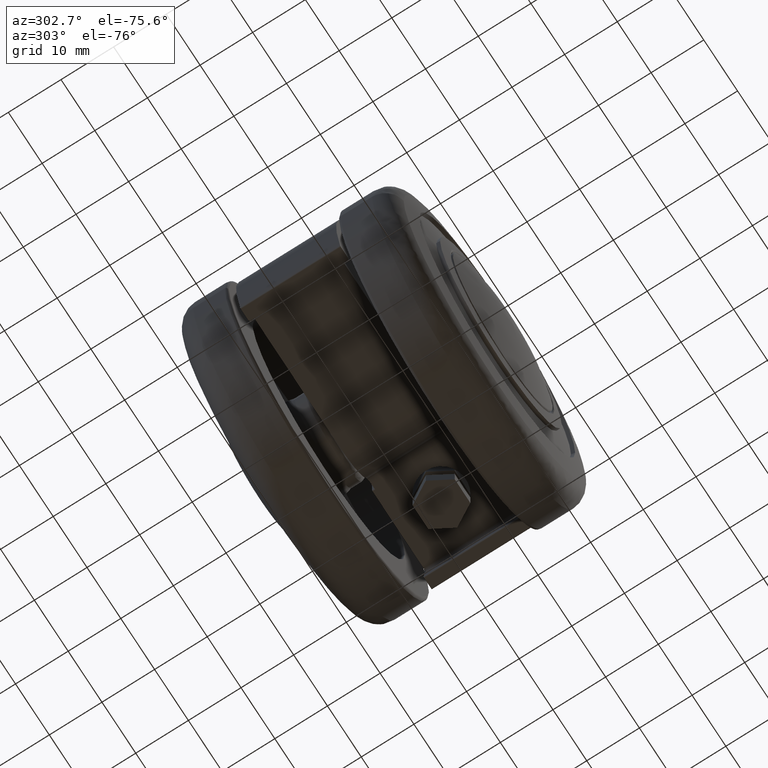
[diagram: clean part render]
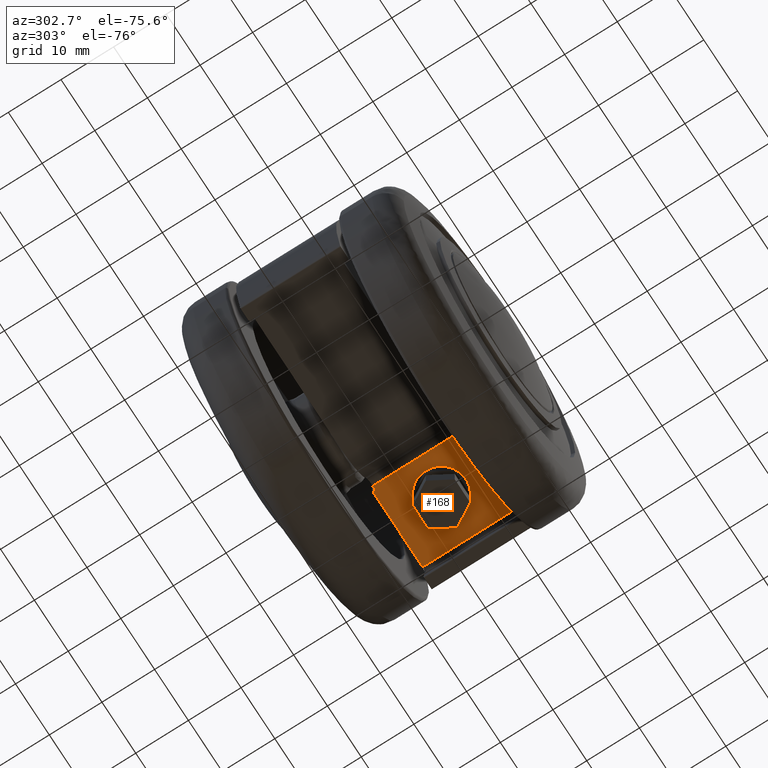
[diagram: same view with one face highlighted and labeled with its STEP entity id]
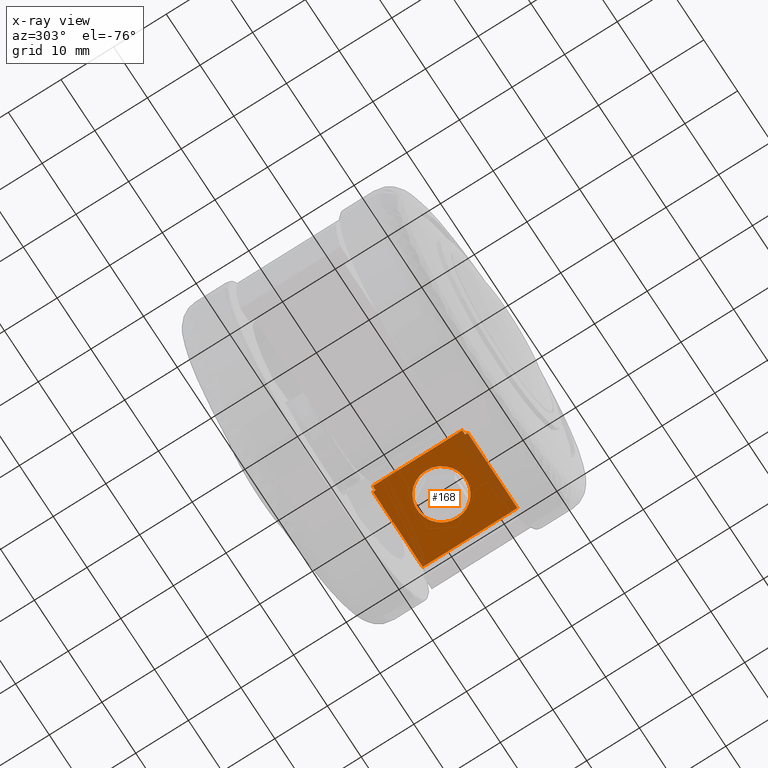
[diagram: x-ray of the same camera — body ghosted, the highlighted face saturated]
A machine part, auxiliary view. The second image highlights one B-rep face of the part: STEP entity #168.
The next image is the same camera in x-ray: the body ghosted, the highlighted face saturated — about 14% of this face is hidden behind the body in this view.
In plain terms, the highlighted planar face has unit normal (0, 0, 1).
Its self-contained STEP definition (entity closure, byte-faithful):
#168=ADVANCED_FACE('',(#410,#411),#409,.F.);
#409=PLANE('',#2024);
#410=FACE_OUTER_BOUND('',#2025,.T.);
#411=FACE_BOUND('',#2026,.T.);
#2021=CARTESIAN_POINT('',(2.70133149300E+01,1.08000000000E+01,-1.50000000000E+00));
#2022=DIRECTION('',(0.00000000000E+00,0.00000000000E+00,1.00000000000E+00));
#2023=DIRECTION('',(-1.00000000000E+00,0.00000000000E+00,0.00000000000E+00));
#2024=AXIS2_PLACEMENT_3D('',#2021,#2022,#2023);
#2025=EDGE_LOOP('',(#4573,#4574,#4575,#4576,#4577,#4578,#4579,#4580));
#2026=EDGE_LOOP('',(#4581,#4582));
#4573=ORIENTED_EDGE('',*,*,#5294,.T.);
#4574=ORIENTED_EDGE('',*,*,#5276,.F.);
#4575=ORIENTED_EDGE('',*,*,#5295,.T.);
#4576=ORIENTED_EDGE('',*,*,#5296,.F.);
#4577=ORIENTED_EDGE('',*,*,#5297,.T.);
#4578=ORIENTED_EDGE('',*,*,#5298,.F.);
#4579=ORIENTED_EDGE('',*,*,#5299,.T.);
#4580=ORIENTED_EDGE('',*,*,#5286,.F.);
#4581=ORIENTED_EDGE('',*,*,#5300,.F.);
#4582=ORIENTED_EDGE('',*,*,#5301,.F.);
#5276=EDGE_CURVE('',#5957,#5964,#5965,.T.);
#5286=EDGE_CURVE('',#6026,#6033,#6034,.T.);
#5294=EDGE_CURVE('',#6026,#5964,#6088,.T.);
#5295=EDGE_CURVE('',#5957,#6094,#6095,.T.);
#5296=EDGE_CURVE('',#6101,#6094,#6102,.T.);
#5297=EDGE_CURVE('',#6101,#6108,#6109,.T.);
#5298=EDGE_CURVE('',#6115,#6108,#6116,.T.);
#5299=EDGE_CURVE('',#6115,#6033,#6122,.T.);
#5300=EDGE_CURVE('',#6128,#6129,#6130,.T.);
#5301=EDGE_CURVE('',#6129,#6128,#6136,.T.);
#5957=VERTEX_POINT('',#8413);
#5964=VERTEX_POINT('',#8418);
#5965=LINE('',#8419,#8420);
#6026=VERTEX_POINT('',#8459);
#6033=VERTEX_POINT('',#8464);
#6034=LINE('',#8465,#8466);
#6088=LINE('',#8501,#8502);
#6094=VERTEX_POINT('',#8504);
#6095=LINE('',#8505,#8506);
#6101=VERTEX_POINT('',#8508);
#6102=LINE('',#8509,#8510);
#6108=VERTEX_POINT('',#8512);
#6109=LINE('',#8513,#8514);
#6115=VERTEX_POINT('',#8516);
#6116=LINE('',#8517,#8518);
#6122=LINE('',#8520,#8521);
#6128=VERTEX_POINT('',#8523);
#6129=VERTEX_POINT('',#8524);
#6130=CIRCLE('',#8528,4.65000000000E+00);
#6136=CIRCLE('',#8532,4.65000000000E+00);
#8413=CARTESIAN_POINT('',(1.07331262920E+01,8.50000000000E+00,-1.50000000000E+00));
#8418=CARTESIAN_POINT('',(9.89949493661E+00,8.50000000000E+00,-1.50000000000E+00));
#8419=CARTESIAN_POINT('',(1.07331262920E+01,8.50000000000E+00,-1.50000000000E+00));
#8420=VECTOR('',#8421,8.33631355387E-01);
#8421=DIRECTION('',(-1.00000000000E+00,0.00000000000E+00,0.00000000000E+00));
#8459=CARTESIAN_POINT('',(9.89949493661E+00,-8.50000000000E+00,-1.50000000000E+00));
#8464=CARTESIAN_POINT('',(1.07331262920E+01,-8.50000000000E+00,-1.50000000000E+00));
#8465=CARTESIAN_POINT('',(9.89949493661E+00,-8.50000000000E+00,-1.50000000000E+00));
#8466=VECTOR('',#8467,8.33631355387E-01);
#8467=DIRECTION('',(1.00000000000E+00,0.00000000000E+00,0.00000000000E+00));
#8501=CARTESIAN_POINT('',(9.89949493661E+00,-8.50000000000E+00,-1.50000000000E+00));
#8502=VECTOR('',#8503,1.70000000000E+01);
#8503=DIRECTION('',(0.00000000000E+00,1.00000000000E+00,0.00000000000E+00));
#8504=CARTESIAN_POINT('',(1.07331262920E+01,9.00000000000E+00,-1.50000000000E+00));
#8505=CARTESIAN_POINT('',(1.07331262920E+01,8.50000000000E+00,-1.50000000000E+00));
#8506=VECTOR('',#8507,5.00000000000E-01);
#8507=DIRECTION('',(0.00000000000E+00,1.00000000000E+00,0.00000000000E+00));
#8508=CARTESIAN_POINT('',(2.54575131125E+01,9.00000000000E+00,-1.50000000000E+00));
#8509=CARTESIAN_POINT('',(2.54575131125E+01,9.00000000000E+00,-1.50000000000E+00));
#8510=VECTOR('',#8511,1.47243868205E+01);
#8511=DIRECTION('',(-1.00000000000E+00,0.00000000000E+00,0.00000000000E+00));
#8512=CARTESIAN_POINT('',(2.54575131125E+01,-9.00000000000E+00,-1.50000000000E+00));
#8513=CARTESIAN_POINT('',(2.54575131125E+01,9.00000000000E+00,-1.50000000000E+00));
#8514=VECTOR('',#8515,1.80000000000E+01);
#8515=DIRECTION('',(-1.97372982156E-16,-1.00000000000E+00,0.00000000000E+00));
#8516=CARTESIAN_POINT('',(1.07331262920E+01,-9.00000000000E+00,-1.50000000000E+00));
#8517=CARTESIAN_POINT('',(1.07331262920E+01,-9.00000000000E+00,-1.50000000000E+00));
#8518=VECTOR('',#8519,1.47243868205E+01);
#8519=DIRECTION('',(1.00000000000E+00,0.00000000000E+00,0.00000000000E+00));
#8520=CARTESIAN_POINT('',(1.07331262920E+01,-9.00000000000E+00,-1.50000000000E+00));
#8521=VECTOR('',#8522,5.00000000000E-01);
#8522=DIRECTION('',(-3.55271367880E-15,1.00000000000E+00,0.00000000000E+00));
#8523=CARTESIAN_POINT('',(1.23500000000E+01,-2.96059473233E-14,-1.50000000000E+00));
#8524=CARTESIAN_POINT('',(2.16500000000E+01,-2.85386886640E-14,-1.50000000000E+00));
#8525=CARTESIAN_POINT('',(1.70000000000E+01,-2.96775913801E-14,-1.50000000000E+00));
#8526=DIRECTION('',(-0.00000000000E+00,0.00000000000E+00,-1.00000000000E+00));
#8527=DIRECTION('',(1.00000000000E+00,1.22464679915E-16,-0.00000000000E+00));
#8528=AXIS2_PLACEMENT_3D('',#8525,#8526,#8527);
#8529=CARTESIAN_POINT('',(1.70000000000E+01,-2.96775913801E-14,-1.50000000000E+00));
#8530=DIRECTION('',(-0.00000000000E+00,0.00000000000E+00,-1.00000000000E+00));
#8531=DIRECTION('',(1.00000000000E+00,1.22464679915E-16,-0.00000000000E+00));
#8532=AXIS2_PLACEMENT_3D('',#8529,#8530,#8531);